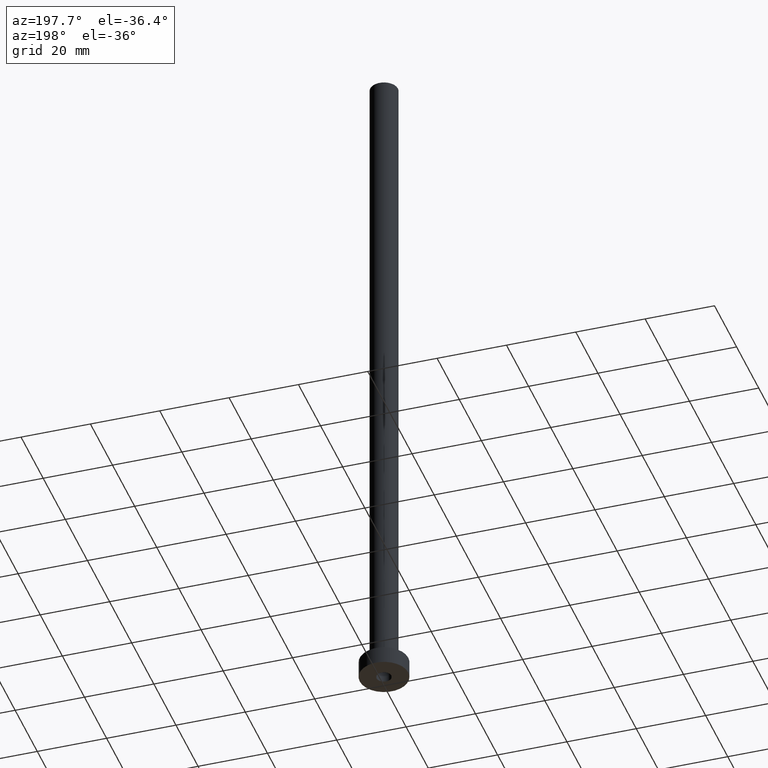
[diagram: clean part render]
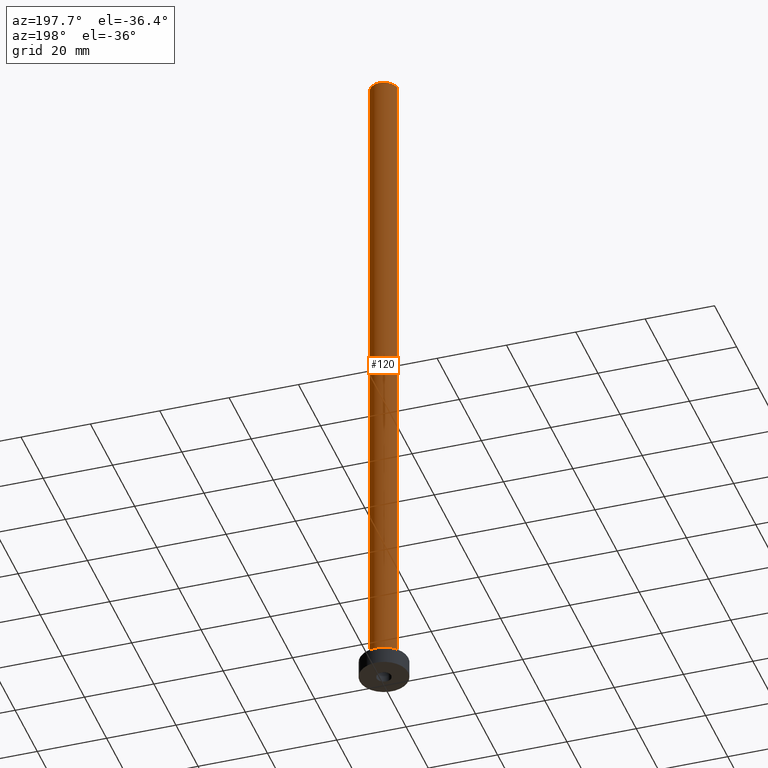
[diagram: same view with one face highlighted and labeled with its STEP entity id]
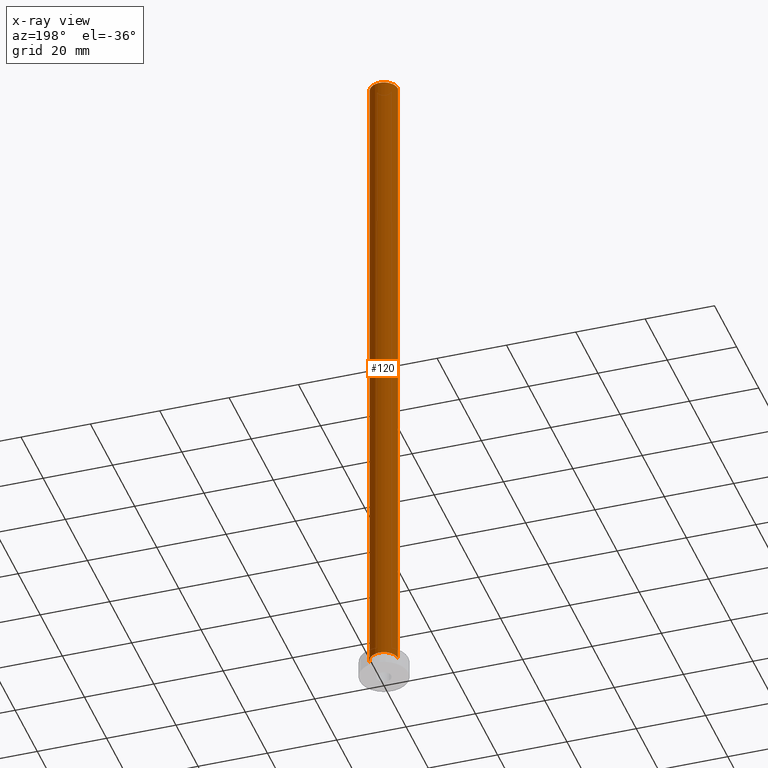
[diagram: x-ray of the same camera — body ghosted, the highlighted face saturated]
A machine part, auxiliary view. The second image highlights one B-rep face of the part: STEP entity #120.
The next image is the same camera in x-ray: the body ghosted, the highlighted face saturated — about 0% of this face is hidden behind the body in this view.
In plain terms, the highlighted cylindrical surface (edge-blend (fillet) strip) has radius 4 mm, axis along (-0, -0, -1).
Its self-contained STEP definition (entity closure, byte-faithful):
#5 = VERTEX_POINT ( 'NONE', #333 ) ;
#7 = VECTOR ( 'NONE', #278, 1000.000000000000000 ) ;
#23 = DIRECTION ( 'NONE',  ( -1.000000000000000000, 0.000000000000000000, 0.000000000000000000 ) ) ;
#25 = CARTESIAN_POINT ( 'NONE',  ( 0.000000000000000000, 0.000000000000000000, 200.0000000000000000 ) ) ;
#42 = EDGE_CURVE ( 'NONE', #171, #403, #433, .T. ) ;
#118 = FACE_OUTER_BOUND ( 'NONE', #181, .T. ) ;
#120 = ADVANCED_FACE ( 'NONE', ( #118 ), #406, .T. ) ;
#128 = VECTOR ( 'NONE', #180, 1000.000000000000000 ) ;
#142 = CARTESIAN_POINT ( 'NONE',  ( 0.000000000000000000, 0.000000000000000000, 5.500000000000005329 ) ) ;
#154 = CARTESIAN_POINT ( 'NONE',  ( 0.000000000000000000, 0.000000000000000000, 200.0000000000000000 ) ) ;
#171 = VERTEX_POINT ( 'NONE', #227 ) ;
#180 = DIRECTION ( 'NONE',  ( -0.000000000000000000, -0.000000000000000000, -1.000000000000000000 ) ) ;
#181 = EDGE_LOOP ( 'NONE', ( #326, #280, #400, #349 ) ) ;
#190 = DIRECTION ( 'NONE',  ( -0.000000000000000000, -0.000000000000000000, -1.000000000000000000 ) ) ;
#195 = DIRECTION ( 'NONE',  ( 1.000000000000000000, 0.000000000000000000, 0.000000000000000000 ) ) ;
#218 = CARTESIAN_POINT ( 'NONE',  ( -4.000000000000000000, 0.000000000000000000, 200.0000000000000000 ) ) ;
#221 = AXIS2_PLACEMENT_3D ( 'NONE', #25, #371, #195 ) ;
#227 = CARTESIAN_POINT ( 'NONE',  ( 4.000000000000000000, 4.898587196589412829E-16, 200.0000000000000000 ) ) ;
#228 = AXIS2_PLACEMENT_3D ( 'NONE', #142, #365, #256 ) ;
#229 = AXIS2_PLACEMENT_3D ( 'NONE', #154, #190, #23 ) ;
#238 = VERTEX_POINT ( 'NONE', #241 ) ;
#241 = CARTESIAN_POINT ( 'NONE',  ( 4.000000000000000000, 4.898587196589412829E-16, 5.500000000000005329 ) ) ;
#245 = LINE ( 'NONE', #218, #128 ) ;
#256 = DIRECTION ( 'NONE',  ( 1.000000000000000000, 0.000000000000000000, 0.000000000000000000 ) ) ;
#278 = DIRECTION ( 'NONE',  ( -0.000000000000000000, -0.000000000000000000, -1.000000000000000000 ) ) ;
#280 = ORIENTED_EDGE ( 'NONE', *, *, #319, .T. ) ;
#315 = CIRCLE ( 'NONE', #228, 4.000000000000000000 ) ;
#319 = EDGE_CURVE ( 'NONE', #171, #238, #458, .T. ) ;
#326 = ORIENTED_EDGE ( 'NONE', *, *, #42, .F. ) ;
#333 = CARTESIAN_POINT ( 'NONE',  ( -4.000000000000000000, 0.000000000000000000, 5.500000000000005329 ) ) ;
#349 = ORIENTED_EDGE ( 'NONE', *, *, #441, .F. ) ;
#357 = CARTESIAN_POINT ( 'NONE',  ( -4.000000000000000000, 0.000000000000000000, 200.0000000000000000 ) ) ;
#358 = EDGE_CURVE ( 'NONE', #238, #5, #315, .T. ) ;
#365 = DIRECTION ( 'NONE',  ( 0.000000000000000000, 0.000000000000000000, 1.000000000000000000 ) ) ;
#371 = DIRECTION ( 'NONE',  ( 0.000000000000000000, 0.000000000000000000, 1.000000000000000000 ) ) ;
#385 = CARTESIAN_POINT ( 'NONE',  ( 4.000000000000000000, 4.898587196589412829E-16, 200.0000000000000000 ) ) ;
#400 = ORIENTED_EDGE ( 'NONE', *, *, #358, .T. ) ;
#403 = VERTEX_POINT ( 'NONE', #357 ) ;
#406 = CYLINDRICAL_SURFACE ( 'NONE', #229, 4.000000000000000000 ) ;
#433 = CIRCLE ( 'NONE', #221, 4.000000000000000000 ) ;
#441 = EDGE_CURVE ( 'NONE', #403, #5, #245, .T. ) ;
#458 = LINE ( 'NONE', #385, #7 ) ;